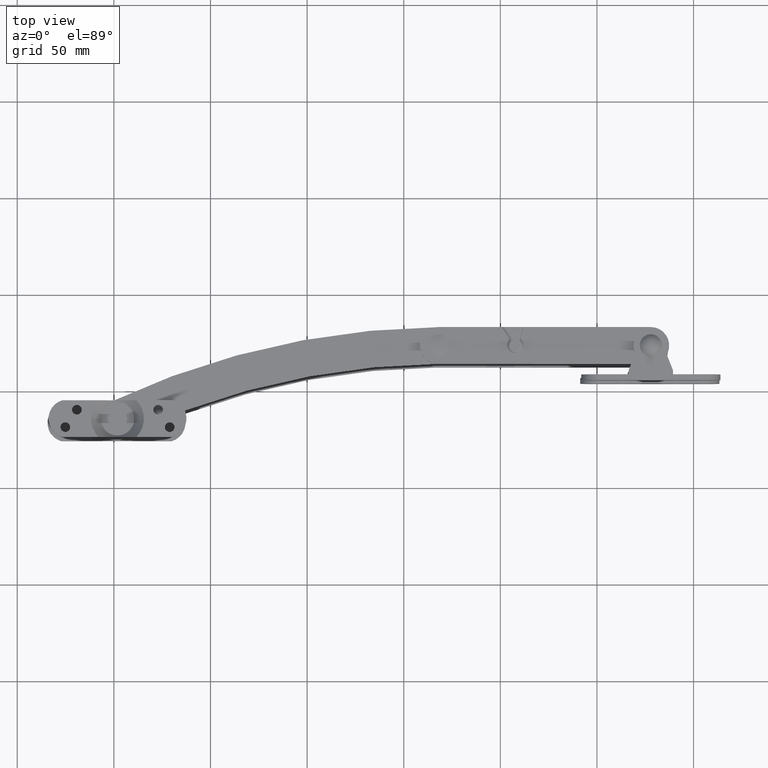
[diagram: clean part render]
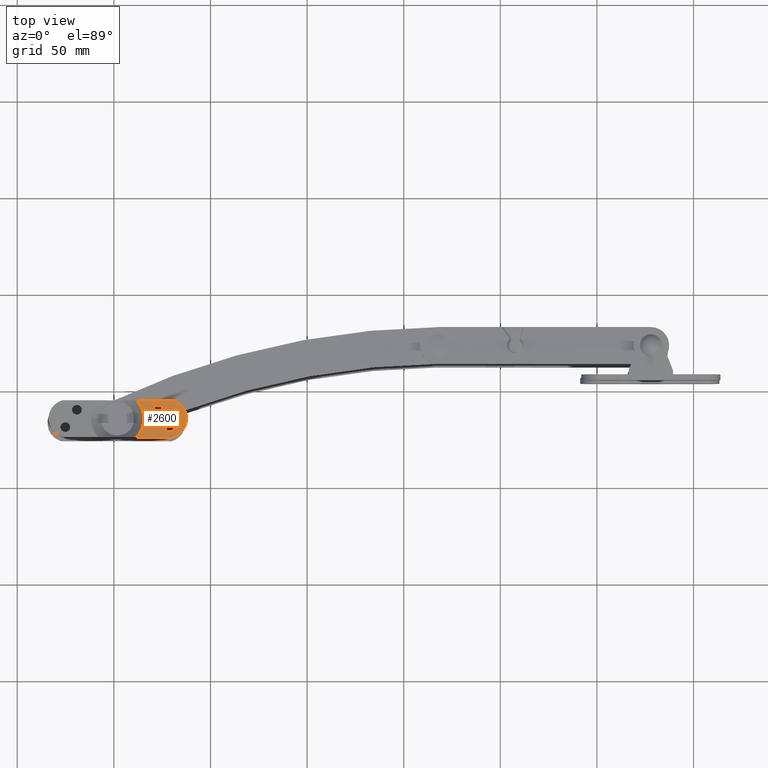
[diagram: same view with one face highlighted and labeled with its STEP entity id]
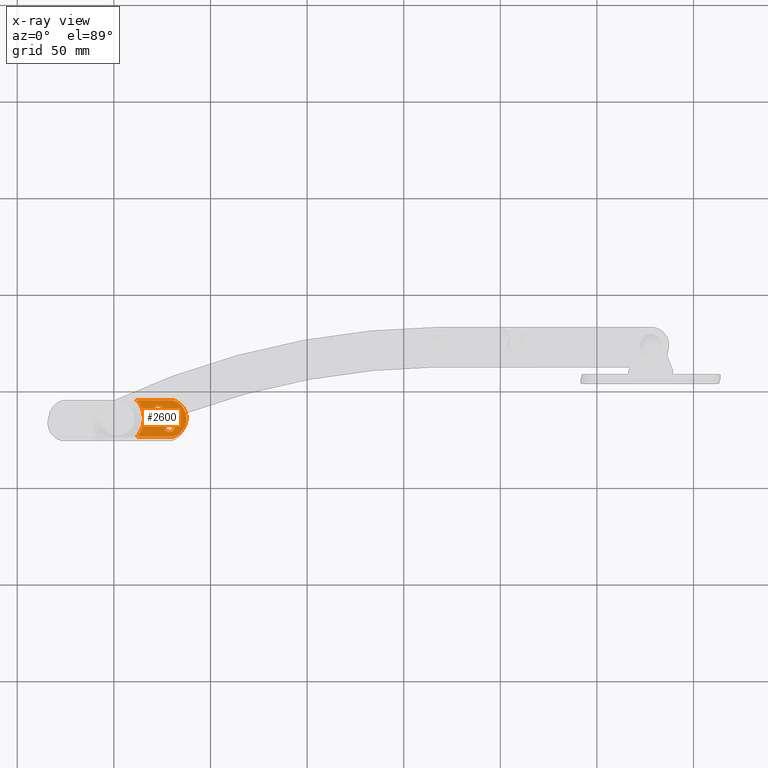
[diagram: x-ray of the same camera — body ghosted, the highlighted face saturated]
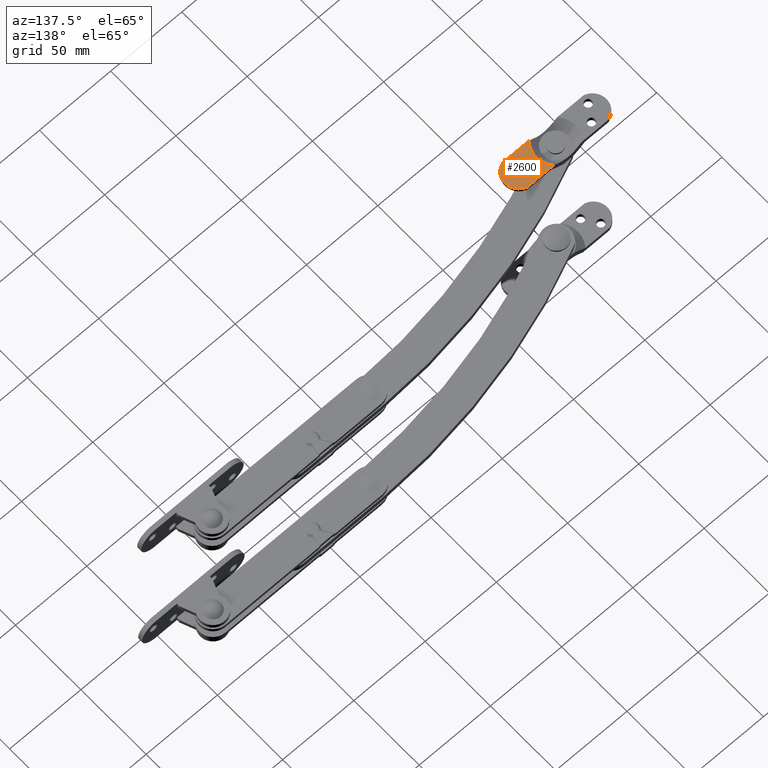
[diagram: same view with one face highlighted and labeled with its STEP entity id]
A machine part, top view. The second image highlights one B-rep face of the part: STEP entity #2600.
The next image is the same camera in x-ray: the body ghosted, the highlighted face saturated — about 0% of this face is hidden behind the body in this view.
A second angle (auxiliary view) of the same face is appended — the face is thin or edge-on in the first view.
In plain terms, the highlighted planar face has unit normal (-0, -0, 1).
Its self-contained STEP definition (entity closure, byte-faithful):
#207=FACE_BOUND('',#638,.T.);
#208=FACE_BOUND('',#639,.T.);
#317=PLANE('',#2840);
#446=FACE_OUTER_BOUND('',#637,.T.);
#637=EDGE_LOOP('',(#2232,#2233,#2234,#2235));
#638=EDGE_LOOP('',(#2236));
#639=EDGE_LOOP('',(#2237));
#850=LINE('',#4796,#1024);
#851=LINE('',#4799,#1025);
#1024=VECTOR('',#3444,18.6664894216499);
#1025=VECTOR('',#3447,18.6664894216499);
#1140=CIRCLE('',#2825,2.5);
#1142=CIRCLE('',#2828,2.5);
#1148=CIRCLE('',#2837,13.6728903416404);
#1150=CIRCLE('',#2841,9.86736111111111);
#1345=VERTEX_POINT('',#4758);
#1347=VERTEX_POINT('',#4763);
#1353=VERTEX_POINT('',#4777);
#1355=VERTEX_POINT('',#4783);
#1358=VERTEX_POINT('',#4795);
#1359=VERTEX_POINT('',#4797);
#1656=EDGE_CURVE('',#1345,#1345,#1140,.T.);
#1658=EDGE_CURVE('',#1347,#1347,#1142,.T.);
#1666=EDGE_CURVE('',#1353,#1355,#1148,.T.);
#1670=EDGE_CURVE('',#1358,#1355,#850,.T.);
#1671=EDGE_CURVE('',#1358,#1359,#1150,.T.);
#1672=EDGE_CURVE('',#1353,#1359,#851,.T.);
#2232=ORIENTED_EDGE('',*,*,#1666,.T.);
#2233=ORIENTED_EDGE('',*,*,#1670,.F.);
#2234=ORIENTED_EDGE('',*,*,#1671,.T.);
#2235=ORIENTED_EDGE('',*,*,#1672,.F.);
#2236=ORIENTED_EDGE('',*,*,#1656,.T.);
#2237=ORIENTED_EDGE('',*,*,#1658,.T.);
#2600=ADVANCED_FACE('',(#446,#207,#208),#317,.T.);
#2825=AXIS2_PLACEMENT_3D('',#4759,#3410,#3411);
#2828=AXIS2_PLACEMENT_3D('',#4764,#3416,#3417);
#2837=AXIS2_PLACEMENT_3D('',#4787,#3434,#3435);
#2840=AXIS2_PLACEMENT_3D('',#4794,#3442,#3443);
#2841=AXIS2_PLACEMENT_3D('',#4798,#3445,#3446);
#3410=DIRECTION('center_axis',(3.06161699786838E-16,0.,1.));
#3411=DIRECTION('ref_axis',(1.,0.,-5.2245789394125E-16));
#3416=DIRECTION('center_axis',(3.06161699786838E-16,0.,1.));
#3417=DIRECTION('ref_axis',(1.,0.,-5.2245789394125E-16));
#3434=DIRECTION('center_axis',(3.06161699786838E-16,0.,1.));
#3435=DIRECTION('ref_axis',(-1.,0.,0.));
#3442=DIRECTION('center_axis',(-3.06161699786838E-16,0.,-1.));
#3443=DIRECTION('ref_axis',(-1.,0.,3.06161699786838E-16));
#3444=DIRECTION('',(-1.,0.,3.06161699786838E-16));
#3445=DIRECTION('center_axis',(-3.06161699786838E-16,0.,-1.));
#3446=DIRECTION('ref_axis',(-0.27032162713773,-0.962770075304385,1.20046917800978E-16));
#3447=DIRECTION('',(1.,0.,-3.06161699786838E-16));
#4758=CARTESIAN_POINT('',(24.5,4.5,1.01879289318544E-14));
#4759=CARTESIAN_POINT('Origin',(27.,4.5,8.88178419700125E-15));
#4763=CARTESIAN_POINT('',(18.5,-4.5,1.01879289318544E-14));
#4764=CARTESIAN_POINT('Origin',(21.,-4.5,8.88178419700125E-15));
#4777=CARTESIAN_POINT('',(9.83351057835012,-9.5,2.22044604925031E-15));
#4783=CARTESIAN_POINT('',(9.83351057835012,9.5,3.33066907387547E-15));
#4787=CARTESIAN_POINT('Origin',(0.,0.,-4.44089209850063E-15));
#4794=CARTESIAN_POINT('Origin',(35.7,0.,-4.37198907295605E-15));
#4795=CARTESIAN_POINT('',(28.5,9.5,-2.16762483449082E-15));
#4796=CARTESIAN_POINT('',(-35.7,9.5,1.74879562918242E-14));
#4797=CARTESIAN_POINT('',(28.5,-9.5,-2.16762483449082E-15));
#4798=CARTESIAN_POINT('Origin',(25.8326388888889,2.22044604925031E-15,9.99952618251458E-18));
#4799=CARTESIAN_POINT('',(-35.7,-9.5,1.74879562918242E-14));